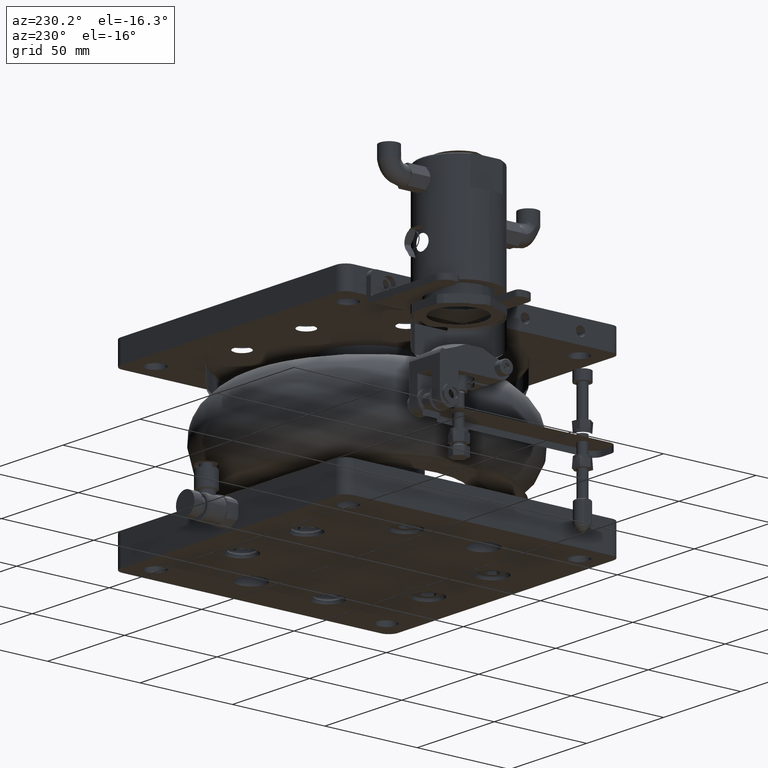
[diagram: clean part render]
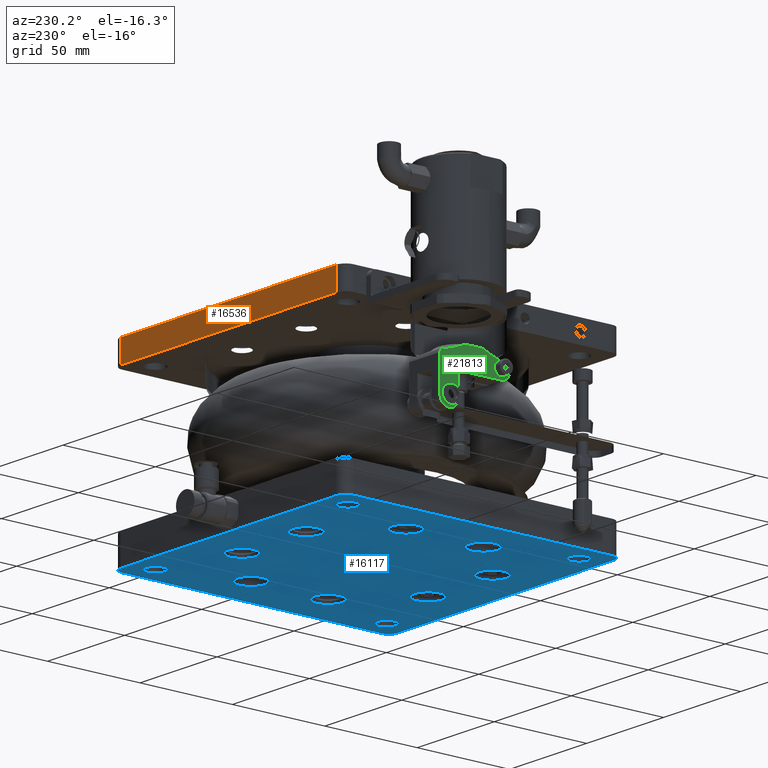
[diagram: same view with three faces highlighted in distinct colors, each labeled with its STEP entity id]
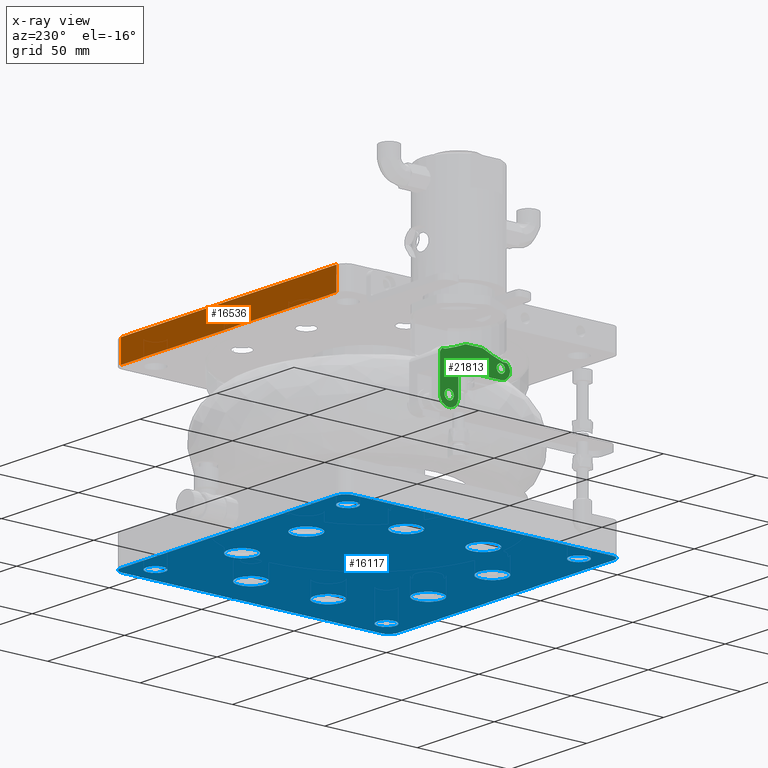
[diagram: x-ray of the same camera — body ghosted, the three highlighted faces saturated]
A machine part, auxiliary view with three faces highlighted in distinct colors.
The next image is the same camera in x-ray (body ghosted, the three faces saturated) — at least one of them is partly hidden behind the body in this view.
Their STEP definitions:

[orange] entity #16536 — the highlighted planar face has unit normal (0, -1, 0).
#113 = VERTEX_POINT ( 'NONE', #23197 ) ;
#1190 = VERTEX_POINT ( 'NONE', #12339 ) ;
#1327 = ORIENTED_EDGE ( 'NONE', *, *, #11111, .F. ) ;
#1502 = LINE ( 'NONE', #21705, #16216 ) ;
#3476 = DIRECTION ( 'NONE',  ( 1.000000000000000000, -0.000000000000000000, 0.000000000000000000 ) ) ;
#3559 = EDGE_CURVE ( 'NONE', #113, #1190, #23733, .T. ) ;
#3677 = ORIENTED_EDGE ( 'NONE', *, *, #3559, .F. ) ;
#4031 = CARTESIAN_POINT ( 'NONE',  ( 198.3816013487657131, 45.06834811713662958, 219.9977288244028273 ) ) ;
#4084 = EDGE_LOOP ( 'NONE', ( #1327, #16520, #3677, #13024 ) ) ;
#4167 = DIRECTION ( 'NONE',  ( 0.000000000000000000, 0.000000000000000000, -1.000000000000000000 ) ) ;
#5846 = LINE ( 'NONE', #7964, #9302 ) ;
#7062 = DIRECTION ( 'NONE',  ( 0.000000000000000000, -1.000000000000000000, 0.000000000000000000 ) ) ;
#7848 = EDGE_CURVE ( 'NONE', #1190, #16833, #1502, .T. ) ;
#7964 = CARTESIAN_POINT ( 'NONE',  ( 198.3816013487657415, 45.06834811713662958, 219.9977288244028273 ) ) ;
#9302 = VECTOR ( 'NONE', #16176, 1000.000000000000000 ) ;
#10013 = CARTESIAN_POINT ( 'NONE',  ( 58.38160134876569884, 45.06834811713662248, 219.9977288244028273 ) ) ;
#10686 = LINE ( 'NONE', #18602, #21137 ) ;
#10936 = AXIS2_PLACEMENT_3D ( 'NONE', #17510, #7062, #19104 ) ;
#11111 = EDGE_CURVE ( 'NONE', #16833, #24352, #5846, .T. ) ;
#12339 = CARTESIAN_POINT ( 'NONE',  ( 58.38160134876569884, 45.06834811713662958, 207.9977288244028557 ) ) ;
#13024 = ORIENTED_EDGE ( 'NONE', *, *, #25129, .F. ) ;
#16176 = DIRECTION ( 'NONE',  ( -0.000000000000000000, -0.000000000000000000, 1.000000000000000000 ) ) ;
#16216 = VECTOR ( 'NONE', #3476, 1000.000000000000000 ) ;
#16520 = ORIENTED_EDGE ( 'NONE', *, *, #7848, .F. ) ;
#16536 = ADVANCED_FACE ( 'NONE', ( #25027 ), #25423, .F. ) ;
#16833 = VERTEX_POINT ( 'NONE', #22852 ) ;
#17510 = CARTESIAN_POINT ( 'NONE',  ( 53.38160134876569884, 45.06834811713662958, 219.9977288244028273 ) ) ;
#18602 = CARTESIAN_POINT ( 'NONE',  ( 53.38160134876569884, 45.06834811713662958, 219.9977288244028273 ) ) ;
#19104 = DIRECTION ( 'NONE',  ( 0.000000000000000000, -0.000000000000000000, -1.000000000000000000 ) ) ;
#20098 = VECTOR ( 'NONE', #4167, 1000.000000000000000 ) ;
#21137 = VECTOR ( 'NONE', #26120, 1000.000000000000000 ) ;
#21705 = CARTESIAN_POINT ( 'NONE',  ( 128.3816013487656846, 45.06834811713662958, 207.9977288244028557 ) ) ;
#22852 = CARTESIAN_POINT ( 'NONE',  ( 198.3816013487657415, 45.06834811713662958, 207.9977288244028557 ) ) ;
#23197 = CARTESIAN_POINT ( 'NONE',  ( 58.38160134876569884, 45.06834811713662958, 219.9977288244028273 ) ) ;
#23733 = LINE ( 'NONE', #10013, #20098 ) ;
#24352 = VERTEX_POINT ( 'NONE', #4031 ) ;
#25027 = FACE_OUTER_BOUND ( 'NONE', #4084, .T. ) ;
#25129 = EDGE_CURVE ( 'NONE', #24352, #113, #10686, .T. ) ;
#25423 = PLANE ( 'NONE',  #10936 ) ;
#26120 = DIRECTION ( 'NONE',  ( -1.000000000000000000, -0.000000000000000000, -0.000000000000000000 ) ) ;

[blue] entity #16117 — the highlighted planar face has unit normal (0, 0, 1).
#60 = AXIS2_PLACEMENT_3D ( 'NONE', #12199, #10480, #20246 ) ;
#174 = EDGE_LOOP ( 'NONE', ( #19569 ) ) ;
#241 = ORIENTED_EDGE ( 'NONE', *, *, #22637, .F. ) ;
#264 = CIRCLE ( 'NONE', #7855, 5.000000000000004441 ) ;
#266 = CARTESIAN_POINT ( 'NONE',  ( 58.38160134876618912, -99.93165188286329226, 119.9977288244024436 ) ) ;
#340 = VERTEX_POINT ( 'NONE', #17880 ) ;
#571 = DIRECTION ( 'NONE',  ( 8.078157638296726621E-17, 3.488754422670472973E-16, 1.000000000000000000 ) ) ;
#700 = DIRECTION ( 'NONE',  ( 0.000000000000000000, -1.000000000000000000, 0.000000000000000000 ) ) ;
#789 = CARTESIAN_POINT ( 'NONE',  ( 178.7330358706313405, -1.575404818965931319, 119.9977288244024010 ) ) ;
#1031 = ORIENTED_EDGE ( 'NONE', *, *, #2359, .F. ) ;
#1254 = DIRECTION ( 'NONE',  ( 0.000000000000000000, 1.000000000000000000, 0.000000000000000000 ) ) ;
#1418 = EDGE_CURVE ( 'NONE', #5361, #21215, #1973, .T. ) ;
#1633 = EDGE_CURVE ( 'NONE', #17044, #17044, #12917, .T. ) ;
#1715 = ORIENTED_EDGE ( 'NONE', *, *, #1418, .T. ) ;
#1740 = DIRECTION ( 'NONE',  ( 8.078157638296726621E-17, 3.488754422670472973E-16, 1.000000000000000000 ) ) ;
#1871 = DIRECTION ( 'NONE',  ( 0.000000000000000000, -1.000000000000000000, 3.488754422670472973E-16 ) ) ;
#1973 = LINE ( 'NONE', #16252, #11646 ) ;
#2224 = EDGE_CURVE ( 'NONE', #10849, #10849, #26000, .T. ) ;
#2359 = EDGE_CURVE ( 'NONE', #5992, #2769, #264, .T. ) ;
#2485 = DIRECTION ( 'NONE',  ( 0.000000000000000000, 1.000000000000000000, 0.000000000000000000 ) ) ;
#2703 = DIRECTION ( 'NONE',  ( -8.078157638296726621E-17, -3.488754422670472973E-16, -1.000000000000000000 ) ) ;
#2769 = VERTEX_POINT ( 'NONE', #21474 ) ;
#2833 = ORIENTED_EDGE ( 'NONE', *, *, #10302, .F. ) ;
#3016 = ORIENTED_EDGE ( 'NONE', *, *, #2224, .F. ) ;
#3031 = VERTEX_POINT ( 'NONE', #13706 ) ;
#3170 = AXIS2_PLACEMENT_3D ( 'NONE', #7076, #19244, #23455 ) ;
#3274 = EDGE_LOOP ( 'NONE', ( #3016 ) ) ;
#3350 = CARTESIAN_POINT ( 'NONE',  ( 107.5253542848687403, -72.78308640472840807, 119.9977288244024294 ) ) ;
#3399 = CARTESIAN_POINT ( 'NONE',  ( 203.3816013487661678, 40.06834811713667932, 119.9977288244023725 ) ) ;
#3408 = DIRECTION ( 'NONE',  ( 0.000000000000000000, 1.000000000000000000, 0.000000000000000000 ) ) ;
#3542 = CARTESIAN_POINT ( 'NONE',  ( 78.03016682690108041, -9.075404818965882470, 119.9977288244024010 ) ) ;
#3874 = EDGE_CURVE ( 'NONE', #15068, #15068, #17178, .T. ) ;
#3881 = DIRECTION ( 'NONE',  ( 0.000000000000000000, 1.000000000000000000, 0.000000000000000000 ) ) ;
#4273 = AXIS2_PLACEMENT_3D ( 'NONE', #16517, #6599, #2485 ) ;
#4615 = EDGE_LOOP ( 'NONE', ( #24083 ) ) ;
#4748 = DIRECTION ( 'NONE',  ( 8.078157638296726621E-17, 3.488754422670472973E-16, 1.000000000000000000 ) ) ;
#4794 = ORIENTED_EDGE ( 'NONE', *, *, #13301, .F. ) ;
#5002 = AXIS2_PLACEMENT_3D ( 'NONE', #16717, #14868, #24754 ) ;
#5003 = CARTESIAN_POINT ( 'NONE',  ( 78.03016682690108041, -1.575404818965874254, 119.9977288244024010 ) ) ;
#5036 = AXIS2_PLACEMENT_3D ( 'NONE', #10060, #14416, #12432 ) ;
#5038 = CIRCLE ( 'NONE', #18155, 7.499999999999992895 ) ;
#5277 = VERTEX_POINT ( 'NONE', #24947 ) ;
#5337 = DIRECTION ( 'NONE',  ( -8.078157638296726621E-17, -3.488754422670472973E-16, -1.000000000000000000 ) ) ;
#5361 = VERTEX_POINT ( 'NONE', #21514 ) ;
#5524 = VECTOR ( 'NONE', #13694, 1000.000000000000000 ) ;
#5613 = CARTESIAN_POINT ( 'NONE',  ( 203.3816013487661678, 45.06834811713670064, 119.9977288244023725 ) ) ;
#5849 = EDGE_LOOP ( 'NONE', ( #6259 ) ) ;
#5954 = CIRCLE ( 'NONE', #60, 4.999999999999990230 ) ;
#5992 = VERTEX_POINT ( 'NONE', #14686 ) ;
#6091 = FACE_BOUND ( 'NONE', #4615, .T. ) ;
#6259 = ORIENTED_EDGE ( 'NONE', *, *, #20298, .F. ) ;
#6343 = DIRECTION ( 'NONE',  ( -1.000000000000000000, -5.551115123125782086E-17, 1.936647743655801879E-32 ) ) ;
#6383 = CIRCLE ( 'NONE', #9772, 7.499999999999992895 ) ;
#6528 = EDGE_LOOP ( 'NONE', ( #13875 ) ) ;
#6599 = DIRECTION ( 'NONE',  ( -8.078157638296726621E-17, -3.488754422670472973E-16, -1.000000000000000000 ) ) ;
#6816 = CARTESIAN_POINT ( 'NONE',  ( 149.2378484126635101, -72.78308640472842228, 119.9977288244024294 ) ) ;
#7076 = CARTESIAN_POINT ( 'NONE',  ( 149.2378484126635669, 20.41978263900181290, 119.9977288244023867 ) ) ;
#7329 = ORIENTED_EDGE ( 'NONE', *, *, #22154, .T. ) ;
#7357 = EDGE_CURVE ( 'NONE', #5992, #11416, #14283, .T. ) ;
#7643 = DIRECTION ( 'NONE',  ( -8.078157638296726621E-17, -3.488754422670472973E-16, -1.000000000000000000 ) ) ;
#7688 = FACE_BOUND ( 'NONE', #17988, .T. ) ;
#7810 = FACE_BOUND ( 'NONE', #174, .T. ) ;
#7855 = AXIS2_PLACEMENT_3D ( 'NONE', #14245, #20052, #18336 ) ;
#7981 = ORIENTED_EDGE ( 'NONE', *, *, #7357, .T. ) ;
#7990 = AXIS2_PLACEMENT_3D ( 'NONE', #3542, #7643, #3408 ) ;
#8210 = FACE_BOUND ( 'NONE', #14233, .T. ) ;
#8215 = CARTESIAN_POINT ( 'NONE',  ( 53.38160134876618201, 45.06834811713670064, 119.9977288244024436 ) ) ;
#8372 = CARTESIAN_POINT ( 'NONE',  ( 107.5253542848687971, 20.41978263900183421, 119.9977288244023867 ) ) ;
#8405 = CARTESIAN_POINT ( 'NONE',  ( 178.7330358706312836, -43.28789894676071981, 119.9977288244024152 ) ) ;
#8592 = DIRECTION ( 'NONE',  ( 0.000000000000000000, -1.000000000000000000, 0.000000000000000000 ) ) ;
#8819 = CARTESIAN_POINT ( 'NONE',  ( 53.38160134876618201, -104.9316518828632923, 119.9977288244024294 ) ) ;
#9508 = EDGE_CURVE ( 'NONE', #5361, #5277, #18541, .T. ) ;
#9772 = AXIS2_PLACEMENT_3D ( 'NONE', #23433, #2703, #18833 ) ;
#9846 = DIRECTION ( 'NONE',  ( 8.078157638296726621E-17, 3.488754422670472973E-16, 1.000000000000000000 ) ) ;
#9994 = EDGE_CURVE ( 'NONE', #3031, #3031, #26131, .T. ) ;
#10060 = CARTESIAN_POINT ( 'NONE',  ( 190.8816013487661678, 32.56834811713671485, 119.9977288244023867 ) ) ;
#10123 = LINE ( 'NONE', #5613, #5524 ) ;
#10197 = VECTOR ( 'NONE', #22089, 1000.000000000000000 ) ;
#10302 = EDGE_CURVE ( 'NONE', #21751, #21751, #19395, .T. ) ;
#10480 = DIRECTION ( 'NONE',  ( 8.078157638296726621E-17, 3.488754422670472973E-16, 1.000000000000000000 ) ) ;
#10677 = AXIS2_PLACEMENT_3D ( 'NONE', #12084, #9846, #3881 ) ;
#10777 = CARTESIAN_POINT ( 'NONE',  ( 58.38160134876618912, 40.06834811713668643, 119.9977288244023867 ) ) ;
#10849 = VERTEX_POINT ( 'NONE', #789 ) ;
#10973 = AXIS2_PLACEMENT_3D ( 'NONE', #18809, #571, #700 ) ;
#11088 = CIRCLE ( 'NONE', #10677, 5.000000000000004441 ) ;
#11181 = CARTESIAN_POINT ( 'NONE',  ( 190.8816013487661678, -87.43165188286329226, 119.9977288244024294 ) ) ;
#11278 = ORIENTED_EDGE ( 'NONE', *, *, #9994, .T. ) ;
#11291 = AXIS2_PLACEMENT_3D ( 'NONE', #23322, #5337, #1254 ) ;
#11369 = DIRECTION ( 'NONE',  ( -8.078157638296726621E-17, -3.488754422670472973E-16, -1.000000000000000000 ) ) ;
#11416 = VERTEX_POINT ( 'NONE', #16202 ) ;
#11519 = ORIENTED_EDGE ( 'NONE', *, *, #9508, .F. ) ;
#11646 = VECTOR ( 'NONE', #14009, 1000.000000000000000 ) ;
#11789 = CIRCLE ( 'NONE', #17695, 5.000000000000004441 ) ;
#12082 = EDGE_LOOP ( 'NONE', ( #4794 ) ) ;
#12084 = CARTESIAN_POINT ( 'NONE',  ( 65.88160134876616780, -92.43165188286330647, 119.9977288244024294 ) ) ;
#12183 = FACE_OUTER_BOUND ( 'NONE', #12806, .T. ) ;
#12199 = CARTESIAN_POINT ( 'NONE',  ( 65.88160134876616780, 32.56834811713671485, 119.9977288244023867 ) ) ;
#12262 = CARTESIAN_POINT ( 'NONE',  ( 178.7330358706313405, -9.075404818965939313, 119.9977288244024010 ) ) ;
#12432 = DIRECTION ( 'NONE',  ( 0.000000000000000000, 1.000000000000000000, 0.000000000000000000 ) ) ;
#12806 = EDGE_LOOP ( 'NONE', ( #15853, #18428, #11519, #1715, #14697, #22788, #1031, #7981 ) ) ;
#12917 = CIRCLE ( 'NONE', #3170, 7.500000000000007105 ) ;
#13259 = EDGE_LOOP ( 'NONE', ( #241 ) ) ;
#13301 = EDGE_CURVE ( 'NONE', #16215, #16215, #16532, .T. ) ;
#13467 = VERTEX_POINT ( 'NONE', #3399 ) ;
#13541 = CIRCLE ( 'NONE', #23631, 7.500000000000007105 ) ;
#13694 = DIRECTION ( 'NONE',  ( 5.551115123125779621E-17, -1.000000000000000000, -4.484278303294300192E-33 ) ) ;
#13706 = CARTESIAN_POINT ( 'NONE',  ( 190.8816013487661678, 37.56834811713672195, 119.9977288244023867 ) ) ;
#13828 = EDGE_CURVE ( 'NONE', #340, #5277, #13908, .T. ) ;
#13875 = ORIENTED_EDGE ( 'NONE', *, *, #17206, .T. ) ;
#13901 = PLANE ( 'NONE',  #22474 ) ;
#13908 = LINE ( 'NONE', #8215, #10197 ) ;
#13927 = CIRCLE ( 'NONE', #10973, 5.000000000000004441 ) ;
#14009 = DIRECTION ( 'NONE',  ( 1.000000000000000000, 5.551115123125782086E-17, -1.936647743655801879E-32 ) ) ;
#14230 = VERTEX_POINT ( 'NONE', #18322 ) ;
#14233 = EDGE_LOOP ( 'NONE', ( #11278 ) ) ;
#14245 = CARTESIAN_POINT ( 'NONE',  ( 198.3816013487661678, -99.93165188286329226, 119.9977288244024294 ) ) ;
#14283 = LINE ( 'NONE', #8819, #18791 ) ;
#14416 = DIRECTION ( 'NONE',  ( 8.078157638296726621E-17, 3.488754422670472973E-16, 1.000000000000000000 ) ) ;
#14464 = DIRECTION ( 'NONE',  ( 0.000000000000000000, 1.000000000000000000, 0.000000000000000000 ) ) ;
#14686 = CARTESIAN_POINT ( 'NONE',  ( 198.3816013487661678, -104.9316518828632923, 119.9977288244024294 ) ) ;
#14697 = ORIENTED_EDGE ( 'NONE', *, *, #18605, .F. ) ;
#14868 = DIRECTION ( 'NONE',  ( 8.078157638296726621E-17, 3.488754422670472973E-16, 1.000000000000000000 ) ) ;
#14908 = EDGE_CURVE ( 'NONE', #14230, #14230, #11088, .T. ) ;
#15010 = VERTEX_POINT ( 'NONE', #11181 ) ;
#15068 = VERTEX_POINT ( 'NONE', #21007 ) ;
#15269 = VERTEX_POINT ( 'NONE', #25289 ) ;
#15758 = FACE_BOUND ( 'NONE', #13259, .T. ) ;
#15853 = ORIENTED_EDGE ( 'NONE', *, *, #17597, .F. ) ;
#15915 = VERTEX_POINT ( 'NONE', #3350 ) ;
#15928 = CARTESIAN_POINT ( 'NONE',  ( 198.3816013487661678, 45.06834811713670774, 119.9977288244023725 ) ) ;
#16017 = FACE_BOUND ( 'NONE', #16705, .T. ) ;
#16117 = ADVANCED_FACE ( 'NONE', ( #12183, #25777, #15758, #19846, #16017, #18266, #7810, #22212, #22084, #6091, #7688, #8210, #19979 ), #13901, .F. ) ;
#16202 = CARTESIAN_POINT ( 'NONE',  ( 58.38160134876618912, -104.9316518828632923, 119.9977288244024294 ) ) ;
#16215 = VERTEX_POINT ( 'NONE', #8405 ) ;
#16252 = CARTESIAN_POINT ( 'NONE',  ( 53.38160134876618201, 45.06834811713670064, 119.9977288244023867 ) ) ;
#16282 = CARTESIAN_POINT ( 'NONE',  ( 128.3816013487661678, -29.93165188286329581, 119.9977288244024010 ) ) ;
#16307 = AXIS2_PLACEMENT_3D ( 'NONE', #12262, #17945, #19925 ) ;
#16439 = DIRECTION ( 'NONE',  ( -8.078157638296726621E-17, -3.488754422670472973E-16, -1.000000000000000000 ) ) ;
#16517 = CARTESIAN_POINT ( 'NONE',  ( 178.7330358706312836, -50.78789894676071981, 119.9977288244024152 ) ) ;
#16532 = CIRCLE ( 'NONE', #4273, 7.500000000000007105 ) ;
#16705 = EDGE_LOOP ( 'NONE', ( #25806 ) ) ;
#16717 = CARTESIAN_POINT ( 'NONE',  ( 190.8816013487661678, -92.43165188286330647, 119.9977288244024294 ) ) ;
#16731 = VERTEX_POINT ( 'NONE', #6816 ) ;
#17044 = VERTEX_POINT ( 'NONE', #25087 ) ;
#17178 = CIRCLE ( 'NONE', #11291, 7.500000000000007105 ) ;
#17206 = EDGE_CURVE ( 'NONE', #15010, #15010, #19380, .T. ) ;
#17597 = EDGE_CURVE ( 'NONE', #340, #11416, #11789, .T. ) ;
#17695 = AXIS2_PLACEMENT_3D ( 'NONE', #266, #4748, #8592 ) ;
#17880 = CARTESIAN_POINT ( 'NONE',  ( 53.38160134876618912, -99.93165188286329226, 119.9977288244024436 ) ) ;
#17945 = DIRECTION ( 'NONE',  ( -8.078157638296726621E-17, -3.488754422670472973E-16, -1.000000000000000000 ) ) ;
#17988 = EDGE_LOOP ( 'NONE', ( #7329 ) ) ;
#18027 = EDGE_LOOP ( 'NONE', ( #24283 ) ) ;
#18155 = AXIS2_PLACEMENT_3D ( 'NONE', #8372, #16439, #14464 ) ;
#18266 = FACE_BOUND ( 'NONE', #20876, .T. ) ;
#18322 = CARTESIAN_POINT ( 'NONE',  ( 65.88160134876616780, -87.43165188286329226, 119.9977288244024294 ) ) ;
#18336 = DIRECTION ( 'NONE',  ( 0.000000000000000000, -1.000000000000000000, 0.000000000000000000 ) ) ;
#18428 = ORIENTED_EDGE ( 'NONE', *, *, #13828, .T. ) ;
#18541 = CIRCLE ( 'NONE', #21480, 4.999999999999997335 ) ;
#18605 = EDGE_CURVE ( 'NONE', #13467, #21215, #13927, .T. ) ;
#18652 = EDGE_CURVE ( 'NONE', #15269, #15269, #5038, .T. ) ;
#18791 = VECTOR ( 'NONE', #6343, 1000.000000000000000 ) ;
#18809 = CARTESIAN_POINT ( 'NONE',  ( 198.3816013487661678, 40.06834811713668643, 119.9977288244023725 ) ) ;
#18827 = DIRECTION ( 'NONE',  ( 8.078157638296726621E-17, 3.488754422670472973E-16, 1.000000000000000000 ) ) ;
#18833 = DIRECTION ( 'NONE',  ( 0.000000000000000000, 1.000000000000000000, 0.000000000000000000 ) ) ;
#19244 = DIRECTION ( 'NONE',  ( -8.078157638296726621E-17, -3.488754422670472973E-16, -1.000000000000000000 ) ) ;
#19380 = CIRCLE ( 'NONE', #5002, 5.000000000000004441 ) ;
#19395 = CIRCLE ( 'NONE', #7990, 7.500000000000007105 ) ;
#19569 = ORIENTED_EDGE ( 'NONE', *, *, #18652, .F. ) ;
#19846 = FACE_BOUND ( 'NONE', #3274, .T. ) ;
#19925 = DIRECTION ( 'NONE',  ( 0.000000000000000000, 1.000000000000000000, 0.000000000000000000 ) ) ;
#19979 = FACE_BOUND ( 'NONE', #6528, .T. ) ;
#20052 = DIRECTION ( 'NONE',  ( 8.078157638296726621E-17, 3.488754422670472973E-16, 1.000000000000000000 ) ) ;
#20246 = DIRECTION ( 'NONE',  ( 0.000000000000000000, 1.000000000000000000, 0.000000000000000000 ) ) ;
#20298 = EDGE_CURVE ( 'NONE', #16731, #16731, #13541, .T. ) ;
#20876 = EDGE_LOOP ( 'NONE', ( #2833 ) ) ;
#21007 = CARTESIAN_POINT ( 'NONE',  ( 78.03016682690105199, -43.28789894676066297, 119.9977288244024152 ) ) ;
#21215 = VERTEX_POINT ( 'NONE', #15928 ) ;
#21390 = DIRECTION ( 'NONE',  ( 0.000000000000000000, 1.000000000000000000, 0.000000000000000000 ) ) ;
#21421 = EDGE_CURVE ( 'NONE', #13467, #2769, #10123, .T. ) ;
#21474 = CARTESIAN_POINT ( 'NONE',  ( 203.3816013487661678, -99.93165188286329226, 119.9977288244024010 ) ) ;
#21480 = AXIS2_PLACEMENT_3D ( 'NONE', #10777, #18827, #24370 ) ;
#21514 = CARTESIAN_POINT ( 'NONE',  ( 58.38160134876618912, 45.06834811713669353, 119.9977288244023867 ) ) ;
#21751 = VERTEX_POINT ( 'NONE', #5003 ) ;
#21846 = CARTESIAN_POINT ( 'NONE',  ( 65.88160134876616780, 37.56834811713670774, 119.9977288244023867 ) ) ;
#22084 = FACE_BOUND ( 'NONE', #12082, .T. ) ;
#22089 = DIRECTION ( 'NONE',  ( -5.551115123125779621E-17, 1.000000000000000000, 4.484278303294300192E-33 ) ) ;
#22154 = EDGE_CURVE ( 'NONE', #25674, #25674, #5954, .T. ) ;
#22212 = FACE_BOUND ( 'NONE', #18027, .T. ) ;
#22474 = AXIS2_PLACEMENT_3D ( 'NONE', #16282, #1740, #1871 ) ;
#22637 = EDGE_CURVE ( 'NONE', #15915, #15915, #6383, .T. ) ;
#22788 = ORIENTED_EDGE ( 'NONE', *, *, #21421, .T. ) ;
#23322 = CARTESIAN_POINT ( 'NONE',  ( 78.03016682690105199, -50.78789894676067007, 119.9977288244024152 ) ) ;
#23371 = CARTESIAN_POINT ( 'NONE',  ( 149.2378484126635101, -80.28308640472843649, 119.9977288244024294 ) ) ;
#23433 = CARTESIAN_POINT ( 'NONE',  ( 107.5253542848687403, -80.28308640472840807, 119.9977288244024294 ) ) ;
#23455 = DIRECTION ( 'NONE',  ( 0.000000000000000000, 1.000000000000000000, 0.000000000000000000 ) ) ;
#23631 = AXIS2_PLACEMENT_3D ( 'NONE', #23371, #11369, #21390 ) ;
#24083 = ORIENTED_EDGE ( 'NONE', *, *, #14908, .T. ) ;
#24283 = ORIENTED_EDGE ( 'NONE', *, *, #1633, .F. ) ;
#24370 = DIRECTION ( 'NONE',  ( 0.000000000000000000, -1.000000000000000000, 0.000000000000000000 ) ) ;
#24754 = DIRECTION ( 'NONE',  ( 0.000000000000000000, 1.000000000000000000, 0.000000000000000000 ) ) ;
#24947 = CARTESIAN_POINT ( 'NONE',  ( 53.38160134876618201, 40.06834811713668643, 119.9977288244024152 ) ) ;
#25087 = CARTESIAN_POINT ( 'NONE',  ( 149.2378484126635669, 27.91978263900182000, 119.9977288244023867 ) ) ;
#25289 = CARTESIAN_POINT ( 'NONE',  ( 107.5253542848687971, 27.91978263900182711, 119.9977288244023867 ) ) ;
#25674 = VERTEX_POINT ( 'NONE', #21846 ) ;
#25777 = FACE_BOUND ( 'NONE', #5849, .T. ) ;
#25806 = ORIENTED_EDGE ( 'NONE', *, *, #3874, .F. ) ;
#26000 = CIRCLE ( 'NONE', #16307, 7.500000000000007105 ) ;
#26131 = CIRCLE ( 'NONE', #5036, 5.000000000000004441 ) ;

[green] entity #21813 — the highlighted planar face has unit normal (1, 0, 0).
#32 = EDGE_CURVE ( 'NONE', #1100, #5857, #2314, .T. ) ;
#52 = ORIENTED_EDGE ( 'NONE', *, *, #3566, .T. ) ;
#57 = CARTESIAN_POINT ( 'NONE',  ( 13.38160134876583918, 20.37549631030810104, 160.1980961059932440 ) ) ;
#209 = ORIENTED_EDGE ( 'NONE', *, *, #5403, .F. ) ;
#408 = CARTESIAN_POINT ( 'NONE',  ( 13.38160134876584273, 23.57989182585914989, 156.4738436644708486 ) ) ;
#455 = CARTESIAN_POINT ( 'NONE',  ( 13.38160134876580720, 16.56834811713656919, 169.4977288244027136 ) ) ;
#541 = CIRCLE ( 'NONE', #17847, 5.000000000000004441 ) ;
#543 = CARTESIAN_POINT ( 'NONE',  ( 13.38160134876584983, 21.17545595609810150, 155.5196110315954172 ) ) ;
#580 = CARTESIAN_POINT ( 'NONE',  ( 13.38160134876579299, -8.548976455671834174, 175.2591979342627440 ) ) ;
#606 = CARTESIAN_POINT ( 'NONE',  ( 13.38160134876580720, -11.43165188286343614, 169.4977288244027136 ) ) ;
#672 = CARTESIAN_POINT ( 'NONE',  ( 13.38160134876584628, 23.92093097581258476, 157.1516474633576195 ) ) ;
#709 = CARTESIAN_POINT ( 'NONE',  ( 13.38160134876579477, -8.409518947267818234, 175.6144890983447056 ) ) ;
#797 = CARTESIAN_POINT ( 'NONE',  ( 13.38160134876584983, 23.90721775336383459, 157.1145054098524270 ) ) ;
#1097 = CARTESIAN_POINT ( 'NONE',  ( 13.38160134876578944, -6.994187001997313580, 176.6950025233648205 ) ) ;
#1100 = VERTEX_POINT ( 'NONE', #15121 ) ;
#1222 = CARTESIAN_POINT ( 'NONE',  ( 13.38160134876578944, -5.636773590340105500, 176.6027196541757860 ) ) ;
#1351 = CARTESIAN_POINT ( 'NONE',  ( 13.38160134876578589, -7.496034299136748125, 177.4977288244027420 ) ) ;
#1421 = CARTESIAN_POINT ( 'NONE',  ( 13.38160134876580365, -7.803168122902953030, 172.6873695744798738 ) ) ;
#1524 = CARTESIAN_POINT ( 'NONE',  ( 13.38160134876584273, 19.09028927305456236, 158.3907699767799784 ) ) ;
#1547 = CARTESIAN_POINT ( 'NONE',  ( 13.38160134876579122, -4.314327310055027453, 173.7362597145389600 ) ) ;
#1555 = CARTESIAN_POINT ( 'NONE',  ( 13.38160134876577878, -2.841510006786728049, 178.9481321665420808 ) ) ;
#1596 = CARTESIAN_POINT ( 'NONE',  ( 13.38160134876584628, 16.56834811713656563, 157.4977288244027136 ) ) ;
#1647 = CARTESIAN_POINT ( 'NONE',  ( 13.38160134876584451, 19.15428431114869667, 158.6567700783562884 ) ) ;
#1672 = CARTESIAN_POINT ( 'NONE',  ( 13.38160134876579832, -6.145885263283470401, 172.2477961868043224 ) ) ;
#1679 = CARTESIAN_POINT ( 'NONE',  ( 13.38160134876584806, 21.56834811713656563, 157.4977288244026852 ) ) ;
#1782 = CARTESIAN_POINT ( 'NONE',  ( 13.38160134876583740, 19.92246954205384313, 159.8874366738967865 ) ) ;
#1814 = CARTESIAN_POINT ( 'NONE',  ( 13.38160134876577523, -3.754158420937409257, 178.6079293123809464 ) ) ;
#1895 = EDGE_CURVE ( 'NONE', #12032, #18326, #5306, .T. ) ;
#2196 = CARTESIAN_POINT ( 'NONE',  ( 13.38160134876575924, 13.56915133555782660, 181.1728431452843040 ) ) ;
#2314 = CIRCLE ( 'NONE', #12458, 5.000000000000004441 ) ;
#2380 = CARTESIAN_POINT ( 'NONE',  ( 13.38160134876585161, 20.66815143234700258, 155.6653291702331785 ) ) ;
#2511 = CARTESIAN_POINT ( 'NONE',  ( 13.38160134876584273, 19.06834811713656563, 157.6796445879941189 ) ) ;
#2556 = CARTESIAN_POINT ( 'NONE',  ( 13.38160134876579122, -8.661904842537243354, 174.8514502381941895 ) ) ;
#2560 = CARTESIAN_POINT ( 'NONE',  ( 13.38160134876583740, 23.87668432209984815, 158.9579697167922347 ) ) ;
#2652 = CARTESIAN_POINT ( 'NONE',  ( 13.38160134876584273, 24.06834811713657984, 157.9977288244026852 ) ) ;
#2686 = CARTESIAN_POINT ( 'NONE',  ( 13.38160134876578589, -7.912957644423375569, 176.1984560908787216 ) ) ;
#2761 = VERTEX_POINT ( 'NONE', #25304 ) ;
#2776 = CARTESIAN_POINT ( 'NONE',  ( 13.38160134876579654, -5.358065511486460153, 172.5174111309373473 ) ) ;
#2973 = VECTOR ( 'NONE', #19034, 1000.000000000000000 ) ;
#3156 = VECTOR ( 'NONE', #10015, 1000.000000000000000 ) ;
#3261 = CARTESIAN_POINT ( 'NONE',  ( 13.38160134876579832, -6.574535192653411464, 172.2476951432019234 ) ) ;
#3386 = CARTESIAN_POINT ( 'NONE',  ( 13.38160134876579477, -8.681651882863434366, 174.4977288244027704 ) ) ;
#3402 = DIRECTION ( 'NONE',  ( 1.000000000000000000, -8.326672684689058623E-17, 3.197082671100923027E-15 ) ) ;
#3470 = DIRECTION ( 'NONE',  ( 3.197082671100923027E-15, 0.000000000000000000, -1.000000000000000000 ) ) ;
#3530 = CARTESIAN_POINT ( 'NONE',  ( 13.38160134876576812, 2.567544898715355295, 181.1728431452843324 ) ) ;
#3566 = EDGE_CURVE ( 'NONE', #20892, #22736, #6741, .T. ) ;
#3702 = EDGE_CURVE ( 'NONE', #17120, #22501, #20687, .T. ) ;
#3753 = CARTESIAN_POINT ( 'NONE',  ( 13.38160134876584095, 19.21576525846056427, 158.8438101854452214 ) ) ;
#3781 = LINE ( 'NONE', #15696, #3815 ) ;
#3786 = CARTESIAN_POINT ( 'NONE',  ( 13.38160134876576635, -0.1326329568392332903, 180.0485460469813859 ) ) ;
#3815 = VECTOR ( 'NONE', #14947, 1000.000000000000000 ) ;
#3894 = CARTESIAN_POINT ( 'NONE',  ( 13.38160134876583740, 21.72712672534241563, 160.4977625093843869 ) ) ;
#4044 = CARTESIAN_POINT ( 'NONE',  ( 13.38160134876577523, 19.89085465521065288, 178.6079293123809180 ) ) ;
#4144 = CARTESIAN_POINT ( 'NONE',  ( 13.38160134876584273, 23.85986640886244814, 158.9975199293717196 ) ) ;
#4203 = EDGE_CURVE ( 'NONE', #5857, #22736, #11245, .T. ) ;
#4370 = CARTESIAN_POINT ( 'NONE',  ( 13.38160134876584628, 23.21422669222484814, 156.1080209749190431 ) ) ;
#4491 = EDGE_CURVE ( 'NONE', #18093, #9973, #15921, .T. ) ;
#4500 = CARTESIAN_POINT ( 'NONE',  ( 13.38160134876584451, 19.51759662029746778, 156.5492078051119904 ) ) ;
#4543 = CARTESIAN_POINT ( 'NONE',  ( 13.38160134876584095, 23.76871539871447325, 159.1905806312445293 ) ) ;
#4628 = CARTESIAN_POINT ( 'NONE',  ( 13.38160134876584983, 19.26001191217264008, 157.0374879320151251 ) ) ;
#4761 = CARTESIAN_POINT ( 'NONE',  ( 13.38160134876584451, 19.12685786625121764, 157.3728989966926690 ) ) ;
#4828 = ORIENTED_EDGE ( 'NONE', *, *, #12393, .F. ) ;
#4877 = VECTOR ( 'NONE', #5696, 1000.000000000000000 ) ;
#5115 = EDGE_CURVE ( 'NONE', #16469, #9844, #9885, .T. ) ;
#5134 = ORIENTED_EDGE ( 'NONE', *, *, #1895, .F. ) ;
#5239 = CARTESIAN_POINT ( 'NONE',  ( 13.38160134876579477, -5.478844098679584995, 172.4586890753502644 ) ) ;
#5305 = EDGE_LOOP ( 'NONE', ( #8326, #9773 ) ) ;
#5306 = LINE ( 'NONE', #10079, #4877 ) ;
#5367 = CARTESIAN_POINT ( 'NONE',  ( 13.38160134876580187, -7.226530175393977906, 172.3927379946324550 ) ) ;
#5403 = EDGE_CURVE ( 'NONE', #6846, #22501, #7504, .T. ) ;
#5432 = CARTESIAN_POINT ( 'NONE',  ( 13.38160134876579477, -4.181651882863429925, 174.4977288244027704 ) ) ;
#5495 = CARTESIAN_POINT ( 'NONE',  ( 13.38160134876580365, -7.142795494857497651, 172.3624827091294378 ) ) ;
#5606 = CARTESIAN_POINT ( 'NONE',  ( 13.38160134876582852, 20.11982709784927792, 160.0484803212538907 ) ) ;
#5696 = DIRECTION ( 'NONE',  ( 8.326672684688751707E-17, -1.000000000000000000, 2.662106094814781384E-31 ) ) ;
#5697 = CARTESIAN_POINT ( 'NONE',  ( 13.38160134876579299, -4.369289936605356139, 175.3975477532102332 ) ) ;
#5775 = AXIS2_PLACEMENT_3D ( 'NONE', #1679, #13717, #17942 ) ;
#5857 = VERTEX_POINT ( 'NONE', #23530 ) ;
#5865 = CARTESIAN_POINT ( 'NONE',  ( 13.38160134876584806, 19.06834811713656919, 158.1565925704821893 ) ) ;
#6009 = CARTESIAN_POINT ( 'NONE',  ( 13.38160134876583562, 19.55680440840290402, 159.5216139843133760 ) ) ;
#6400 = B_SPLINE_CURVE_WITH_KNOTS ( 'NONE', 3,
 ( #25593, #3530, #11610, #3786, #19665, #1555, #1814, #8016, #10413, #20696 ),
 .UNSPECIFIED., .F., .F.,
 ( 4, 2, 2, 2, 4 ),
 ( 3.903127820947815962E-18, 0.002921900910199278206, 0.005843801820398552074, 0.008765702730597825509, 0.01168760364079710068 ),
 .UNSPECIFIED. ) ;
#6468 = CARTESIAN_POINT ( 'NONE',  ( 13.38160134876579477, -6.508566796174854119, 173.6240966196251634 ) ) ;
#6496 = CARTESIAN_POINT ( 'NONE',  ( 13.38160134876585161, 22.62701063506553112, 155.7321207680782607 ) ) ;
#6667 = EDGE_CURVE ( 'NONE', #20892, #2761, #14106, .T. ) ;
#6686 = DIRECTION ( 'NONE',  ( -2.334029803803866720E-30, -1.000000000000000000, 7.300498748129456208E-16 ) ) ;
#6741 = B_SPLINE_CURVE_WITH_KNOTS ( 'NONE', 3,
 ( #8005, #2196, #22147, #9878, #17934, #22017, #4044, #8279, #25973, #19777 ),
 .UNSPECIFIED., .F., .F.,
 ( 4, 2, 2, 2, 4 ),
 ( 8.673617379884035472E-18, 0.002921900910199304226, 0.005843801820398599779, 0.008765702730597894898, 0.01168760364079719088 ),
 .UNSPECIFIED. ) ;
#6752 = CARTESIAN_POINT ( 'NONE',  ( 13.38160134876584806, 22.50703717242945601, 155.6805675705147678 ) ) ;
#6789 = CARTESIAN_POINT ( 'NONE',  ( 13.38160134876579477, -8.681651882863434366, 174.4977288244027704 ) ) ;
#6846 = VERTEX_POINT ( 'NONE', #8608 ) ;
#6947 = ORIENTED_EDGE ( 'NONE', *, *, #16173, .F. ) ;
#7118 = B_SPLINE_CURVE_WITH_KNOTS ( 'NONE', 3,
 ( #11728, #23480, #9486, #9357, #25327, #1547, #7237, #25586, #15309, #19778, #17419, #23352, #2776, #5239, #12838, #25460, #7493, #21370, #1672, #3261, #20882, #17546, #5495, #7367, #5367, #10853, #15557, #1421, #19533, #13453, #13710, #9613, #15693, #18901, #25713, #21498, #23605, #3386 ),
 .UNSPECIFIED., .F., .F.,
 ( 4, 1, 1, 1, 2, 2, 2, 1, 1, 1, 2, 2, 2, 1, 1, 1, 2, 2, 2, 1, 1, 1, 2, 2, 4 ),
 ( 0.000000000000000000, 0.06250000000002091383, 0.09375000000003136380, 0.1093750000000365402, 0.1171875000000333622, 0.1250000000000301703, 0.2500000000000639488, 0.3125000000000848210, 0.3437500000000953682, 0.3593750000000980327, 0.3671875000000991984, 0.3750000000001003642, 0.5000000000000497380, 0.5625000000000243139, 0.5937500000000107692, 0.6093750000000037748, 0.6171875000000002220, 0.6249999999999967804, 0.7499999999999343858, 0.8124999999999032996, 0.8437499999998923084, 0.8593749999998866462, 0.8671874999998890887, 0.8749999999998914202, 1.000000000000000000 ),
 .UNSPECIFIED. ) ;
#7170 = CARTESIAN_POINT ( 'NONE',  ( 13.38160134876578589, -7.331470811668353349, 176.5600907706626685 ) ) ;
#7179 = FACE_OUTER_BOUND ( 'NONE', #23100, .T. ) ;
#7237 = CARTESIAN_POINT ( 'NONE',  ( 13.38160134876579832, -4.326669210258900833, 173.7028299134665303 ) ) ;
#7367 = CARTESIAN_POINT ( 'NONE',  ( 13.38160134876580010, -7.193081751245361311, 172.3803887266658421 ) ) ;
#7435 = CARTESIAN_POINT ( 'NONE',  ( 13.38160134876578589, -7.276469852963917795, 176.5831743754449406 ) ) ;
#7493 = CARTESIAN_POINT ( 'NONE',  ( 13.38160134876580010, -5.586833912759564313, 172.4122832733619362 ) ) ;
#7504 = CIRCLE ( 'NONE', #25634, 5.000000000000004441 ) ;
#7560 = CARTESIAN_POINT ( 'NONE',  ( 13.38160134876579122, -4.234310657066606254, 175.0600934885415256 ) ) ;
#7668 = CARTESIAN_POINT ( 'NONE',  ( 13.38160134876584273, 24.06834811713657984, 157.9977288244026852 ) ) ;
#7691 = CARTESIAN_POINT ( 'NONE',  ( 13.38160134876579122, -5.060135642798059941, 176.3080880742811303 ) ) ;
#7837 = EDGE_LOOP ( 'NONE', ( #20034, #8123 ) ) ;
#7851 = CARTESIAN_POINT ( 'NONE',  ( 13.38160134876583385, 22.35852252008428209, 160.3702216456934195 ) ) ;
#7982 = CARTESIAN_POINT ( 'NONE',  ( 13.38160134876583918, 22.46854480192518366, 160.3301284785738687 ) ) ;
#8005 = CARTESIAN_POINT ( 'NONE',  ( 13.38160134876576990, 12.65092381209244365, 181.4977288244027136 ) ) ;
#8016 = CARTESIAN_POINT ( 'NONE',  ( 13.38160134876577878, -5.604556332329364565, 177.9964374148076729 ) ) ;
#8123 = ORIENTED_EDGE ( 'NONE', *, *, #12900, .F. ) ;
#8279 = CARTESIAN_POINT ( 'NONE',  ( 13.38160134876577878, 21.74125256660261485, 177.9964374148076445 ) ) ;
#8326 = ORIENTED_EDGE ( 'NONE', *, *, #5115, .F. ) ;
#8342 = CARTESIAN_POINT ( 'NONE',  ( 13.38160134876584273, 24.06834811713658340, 157.8388650783176104 ) ) ;
#8411 = CARTESIAN_POINT ( 'NONE',  ( 13.38160134876577168, -11.43165188286343614, 181.4977288244027136 ) ) ;
#8419 = CARTESIAN_POINT ( 'NONE',  ( 13.38160134876578056, -9.670049603673593452, 177.4977288244027420 ) ) ;
#8424 = CARTESIAN_POINT ( 'NONE',  ( 13.38160134876579477, 21.78223466298161171, 174.0509676126069110 ) ) ;
#8608 = CARTESIAN_POINT ( 'NONE',  ( 13.38160134876579477, -11.43165188286343259, 174.4977288244027420 ) ) ;
#8644 = CARTESIAN_POINT ( 'NONE',  ( 13.38160134876579122, -8.536634555467966123, 175.2926277353370210 ) ) ;
#8736 = CARTESIAN_POINT ( 'NONE',  ( 13.38160134876585339, 21.40956950896493183, 155.4976951394168623 ) ) ;
#8866 = CARTESIAN_POINT ( 'NONE',  ( 13.38160134876584983, 23.76595644557529496, 156.7568506246540778 ) ) ;
#9161 = CARTESIAN_POINT ( 'NONE',  ( 13.38160134876579122, -5.720508270892185720, 176.6329749396846296 ) ) ;
#9167 = VECTOR ( 'NONE', #9642, 1000.000000000000000 ) ;
#9171 = CARTESIAN_POINT ( 'NONE',  ( 13.38160134876580898, -11.43165188286343614, 169.4977288244027136 ) ) ;
#9292 = CARTESIAN_POINT ( 'NONE',  ( 13.38160134876578766, -5.314891608926214595, 176.4755958888090106 ) ) ;
#9357 = CARTESIAN_POINT ( 'NONE',  ( 13.38160134876579299, -4.258994457474346795, 173.9046034133448586 ) ) ;
#9427 = CARTESIAN_POINT ( 'NONE',  ( 13.38160134876578589, -7.384459667047046594, 176.5367685734555891 ) ) ;
#9486 = CARTESIAN_POINT ( 'NONE',  ( 13.38160134876580010, -4.201398923189621826, 174.1440074105969416 ) ) ;
#9613 = CARTESIAN_POINT ( 'NONE',  ( 13.38160134876579832, -8.470691631923081388, 173.5449210402320830 ) ) ;
#9642 = DIRECTION ( 'NONE',  ( 8.326672684688751707E-17, -1.000000000000000000, 2.662106094814781384E-31 ) ) ;
#9773 = ORIENTED_EDGE ( 'NONE', *, *, #15281, .F. ) ;
#9844 = VERTEX_POINT ( 'NONE', #20766 ) ;
#9858 = CARTESIAN_POINT ( 'NONE',  ( 13.38160134876583207, 20.60810722474942125, 160.3060650293681988 ) ) ;
#9878 = CARTESIAN_POINT ( 'NONE',  ( 13.38160134876576812, 16.26932919111243336, 180.0485460469813859 ) ) ;
#9885 = B_SPLINE_CURVE_WITH_KNOTS ( 'NONE', 3,
 ( #6789, #18693, #2556, #10642, #21050, #580, #8644, #12750, #709, #20793, #2686, #11284, #15762, #9427, #7170, #19337, #7435, #1097, #11546, #25403, #23801, #23417, #9161, #21691, #1222, #15499, #9292, #7691, #23542, #17486, #25262, #25650, #5697, #23290, #17353, #7560, #17219, #5432 ),
 .UNSPECIFIED., .F., .F.,
 ( 4, 1, 1, 1, 2, 2, 2, 1, 1, 1, 2, 2, 2, 1, 1, 1, 2, 2, 2, 1, 1, 1, 2, 2, 4 ),
 ( 0.000000000000000000, 0.06250000000003158585, 0.09375000000004737877, 0.1093750000000493772, 0.1171875000000445893, 0.1250000000000398015, 0.2499999999999699407, 0.3124999999999389377, 0.3437499999999233946, 0.3593749999999182876, 0.3671874999999180655, 0.3749999999999178435, 0.4999999999999503175, 0.5624999999999663602, 0.5937499999999757971, 0.6093749999999822364, 0.6171874999999833467, 0.6249999999999845679, 0.7499999999999777955, 0.8124999999999743538, 0.8437499999999680256, 0.8593749999999698019, 0.8671874999999757971, 0.8749999999999819034, 1.000000000000000000 ),
 .UNSPECIFIED. ) ;
#9973 = VERTEX_POINT ( 'NONE', #22068 ) ;
#9988 = CARTESIAN_POINT ( 'NONE',  ( 13.38160134876584273, 19.22947848090932510, 158.8809522389516360 ) ) ;
#10002 = CARTESIAN_POINT ( 'NONE',  ( 13.38160134876580898, -6.431651882863437031, 169.4977288244027136 ) ) ;
#10015 = DIRECTION ( 'NONE',  ( 8.326672684688751707E-17, -1.000000000000000000, 2.662106094814781384E-31 ) ) ;
#10079 = CARTESIAN_POINT ( 'NONE',  ( 13.38160134876578411, -11.43165188286343614, 177.4977288244027420 ) ) ;
#10251 = CARTESIAN_POINT ( 'NONE',  ( 13.38160134876584095, 24.00983836802193494, 158.6225586521100297 ) ) ;
#10339 = CARTESIAN_POINT ( 'NONE',  ( 13.38160134876584273, 24.04640696121857957, 157.6046876720155865 ) ) ;
#10413 = CARTESIAN_POINT ( 'NONE',  ( 13.38160134876578411, -6.542201222255158655, 177.7248611770654350 ) ) ;
#10569 = DIRECTION ( 'NONE',  ( -3.122502256758250009E-15, -1.734723475976805517E-15, 1.000000000000000000 ) ) ;
#10642 = CARTESIAN_POINT ( 'NONE',  ( 13.38160134876579299, -8.604309308252519273, 175.0908542354498252 ) ) ;
#10731 = CARTESIAN_POINT ( 'NONE',  ( 13.38160134876584451, 23.90074777130623573, 157.0975321396132358 ) ) ;
#10835 = CARTESIAN_POINT ( 'NONE',  ( 13.38160134876584451, 19.06834811713656919, 157.9977288244026852 ) ) ;
#10853 = CARTESIAN_POINT ( 'NONE',  ( 13.38160134876580187, -7.241830780786641775, 172.3985703586999136 ) ) ;
#11164 = FACE_BOUND ( 'NONE', #5305, .T. ) ;
#11245 = LINE ( 'NONE', #19300, #9167 ) ;
#11284 = CARTESIAN_POINT ( 'NONE',  ( 13.38160134876578766, -7.735347127196598116, 176.3433880249484673 ) ) ;
#11546 = CARTESIAN_POINT ( 'NONE',  ( 13.38160134876578411, -6.717418502383797119, 176.7476614619787085 ) ) ;
#11610 = CARTESIAN_POINT ( 'NONE',  ( 13.38160134876576990, 1.666595325700058527, 180.8005216880700061 ) ) ;
#11728 = CARTESIAN_POINT ( 'NONE',  ( 13.38160134876579477, -4.181651882863429925, 174.4977288244027704 ) ) ;
#11831 = CARTESIAN_POINT ( 'NONE',  ( 13.38160134876583918, 19.37073978868328439, 159.2386070241266793 ) ) ;
#12032 = VERTEX_POINT ( 'NONE', #1351 ) ;
#12314 = AXIS2_PLACEMENT_3D ( 'NONE', #9171, #21576, #3470 ) ;
#12324 = CARTESIAN_POINT ( 'NONE',  ( 13.38160134876584806, 23.94081514836326718, 157.2074892377661399 ) ) ;
#12373 = EDGE_CURVE ( 'NONE', #1100, #9973, #19168, .T. ) ;
#12393 = EDGE_CURVE ( 'NONE', #17120, #18093, #3781, .T. ) ;
#12458 = AXIS2_PLACEMENT_3D ( 'NONE', #8424, #12791, #24783 ) ;
#12576 = CARTESIAN_POINT ( 'NONE',  ( 13.38160134876584806, 19.30274006080935223, 156.9390663064765477 ) ) ;
#12615 = CARTESIAN_POINT ( 'NONE',  ( 13.38160134876584273, 24.06834811713658340, 158.3158130608085230 ) ) ;
#12711 = CARTESIAN_POINT ( 'NONE',  ( 13.38160134876584451, 23.98241192312444170, 157.3386875704417491 ) ) ;
#12750 = CARTESIAN_POINT ( 'NONE',  ( 13.38160134876579299, -8.530810348565534440, 175.3079077223277409 ) ) ;
#12791 = DIRECTION ( 'NONE',  ( 1.000000000000000000, -8.326672684689058623E-17, 3.197082671100923027E-15 ) ) ;
#12838 = CARTESIAN_POINT ( 'NONE',  ( 13.38160134876580010, -5.531832954058374163, 172.4353668781431281 ) ) ;
#12900 = EDGE_CURVE ( 'NONE', #13974, #13338, #20425, .T. ) ;
#13338 = VERTEX_POINT ( 'NONE', #10835 ) ;
#13402 = PLANE ( 'NONE',  #12314 ) ;
#13453 = CARTESIAN_POINT ( 'NONE',  ( 13.38160134876579654, -8.277311083424702787, 173.1940335800990169 ) ) ;
#13627 = ORIENTED_EDGE ( 'NONE', *, *, #4491, .F. ) ;
#13688 = CARTESIAN_POINT ( 'NONE',  ( 13.38160134876583562, 21.25079090072489052, 160.4976614544392248 ) ) ;
#13710 = CARTESIAN_POINT ( 'NONE',  ( 13.38160134876579832, -8.411969576341270738, 173.4241424530483471 ) ) ;
#13717 = DIRECTION ( 'NONE',  ( 1.000000000000000000, -8.326672684689058623E-17, 3.197082671100923027E-15 ) ) ;
#13945 = CARTESIAN_POINT ( 'NONE',  ( 13.38160134876583385, 20.56855701217228116, 160.2892471161329411 ) ) ;
#13974 = VERTEX_POINT ( 'NONE', #7668 ) ;
#14080 = CARTESIAN_POINT ( 'NONE',  ( 13.38160134876583207, 23.09223327706656903, 160.0092725331159613 ) ) ;
#14106 = LINE ( 'NONE', #8411, #3156 ) ;
#14212 = CARTESIAN_POINT ( 'NONE',  ( 13.38160134876584451, 19.06834811713656919, 157.9977288244026852 ) ) ;
#14325 = ORIENTED_EDGE ( 'NONE', *, *, #32, .F. ) ;
#14340 = CARTESIAN_POINT ( 'NONE',  ( 13.38160134876583918, 23.61909961397099522, 159.4462498437077045 ) ) ;
#14436 = CARTESIAN_POINT ( 'NONE',  ( 13.38160134876585339, 23.01686913643356291, 155.9469773275698969 ) ) ;
#14534 = DIRECTION ( 'NONE',  ( 1.000000000000000000, -8.326672684689058623E-17, 3.197082671100923027E-15 ) ) ;
#14692 = CARTESIAN_POINT ( 'NONE',  ( 13.38160134876584983, 22.56813922210342582, 155.7062105326772610 ) ) ;
#14822 = CARTESIAN_POINT ( 'NONE',  ( 13.38160134876585161, 20.32746991739019293, 155.8001204959616928 ) ) ;
#14947 = DIRECTION ( 'NONE',  ( 3.197082671100923027E-15, 0.000000000000000000, -1.000000000000000000 ) ) ;
#14949 = CARTESIAN_POINT ( 'NONE',  ( 13.38160134876585161, 21.88590533347986167, 155.4977961943744447 ) ) ;
#15121 = CARTESIAN_POINT ( 'NONE',  ( 13.38160134876579122, 26.56834811713657274, 175.4977288244027704 ) ) ;
#15281 = EDGE_CURVE ( 'NONE', #9844, #16469, #7118, .T. ) ;
#15309 = CARTESIAN_POINT ( 'NONE',  ( 13.38160134876579654, -4.453784818471338447, 173.3809685504478182 ) ) ;
#15499 = CARTESIAN_POINT ( 'NONE',  ( 13.38160134876578766, -5.621472984938153949, 176.5968872901047177 ) ) ;
#15557 = CARTESIAN_POINT ( 'NONE',  ( 13.38160134876580365, -7.548412156833745890, 172.5198617600107980 ) ) ;
#15668 = CARTESIAN_POINT ( 'NONE',  ( 13.38160134876584451, 19.19588108590989251, 158.7879684110349672 ) ) ;
#15693 = CARTESIAN_POINT ( 'NONE',  ( 13.38160134876579654, -8.494013829127467829, 173.5979098956055964 ) ) ;
#15696 = CARTESIAN_POINT ( 'NONE',  ( 13.38160134876580720, 16.56834811713656919, 169.4977288244027136 ) ) ;
#15709 = CARTESIAN_POINT ( 'NONE',  ( 13.38160134876579654, -6.431651882863431702, 174.4977288244027704 ) ) ;
#15762 = CARTESIAN_POINT ( 'NONE',  ( 13.38160134876579122, -7.505238254240009788, 176.4780465178689894 ) ) ;
#15908 = CARTESIAN_POINT ( 'NONE',  ( 13.38160134876577878, 23.63273053341000818, 177.4977288244027420 ) ) ;
#15921 = CIRCLE ( 'NONE', #5775, 5.000000000000004441 ) ;
#16062 = CARTESIAN_POINT ( 'NONE',  ( 13.38160134876583740, 22.80922631689831803, 160.1953371528171601 ) ) ;
#16173 = EDGE_CURVE ( 'NONE', #18326, #6846, #541, .T. ) ;
#16451 = CARTESIAN_POINT ( 'NONE',  ( 13.38160134876584095, 23.83395617346173623, 159.0563913423351039 ) ) ;
#16469 = VERTEX_POINT ( 'NONE', #19923 ) ;
#16797 = CARTESIAN_POINT ( 'NONE',  ( 13.38160134876584806, 19.27682982540945744, 156.9979377194375445 ) ) ;
#17115 = ORIENTED_EDGE ( 'NONE', *, *, #4203, .F. ) ;
#17120 = VERTEX_POINT ( 'NONE', #455 ) ;
#17219 = CARTESIAN_POINT ( 'NONE',  ( 13.38160134876579299, -4.181651882863428149, 174.7840224563700531 ) ) ;
#17353 = CARTESIAN_POINT ( 'NONE',  ( 13.38160134876578944, -4.346210552248359171, 175.3425574479403792 ) ) ;
#17419 = CARTESIAN_POINT ( 'NONE',  ( 13.38160134876579832, -4.950346121303193847, 172.7970015579274730 ) ) ;
#17486 = CARTESIAN_POINT ( 'NONE',  ( 13.38160134876579299, -4.585992682324797620, 175.8014240687455185 ) ) ;
#17546 = CARTESIAN_POINT ( 'NONE',  ( 13.38160134876580365, -7.024665555464533639, 172.3250271924376591 ) ) ;
#17775 = CARTESIAN_POINT ( 'NONE',  ( 13.38160134876583385, 20.50968559921187406, 160.2633368807351530 ) ) ;
#17847 = AXIS2_PLACEMENT_3D ( 'NONE', #6468, #14534, #10569 ) ;
#17934 = CARTESIAN_POINT ( 'NONE',  ( 13.38160134876578233, 17.16735484993758121, 179.6681971246406988 ) ) ;
#17942 = DIRECTION ( 'NONE',  ( 3.122502256758250009E-15, 0.000000000000000000, -1.000000000000000000 ) ) ;
#18019 = VECTOR ( 'NONE', #6686, 1000.000000000000000 ) ;
#18042 = CARTESIAN_POINT ( 'NONE',  ( 13.38160134876583562, 22.22727762763089032, 160.4118368419290164 ) ) ;
#18093 = VERTEX_POINT ( 'NONE', #1596 ) ;
#18136 = ORIENTED_EDGE ( 'NONE', *, *, #6667, .F. ) ;
#18172 = CARTESIAN_POINT ( 'NONE',  ( 13.38160134876584451, 19.23594846296782279, 158.8979255091937262 ) ) ;
#18290 = EDGE_CURVE ( 'NONE', #2761, #12032, #6400, .T. ) ;
#18326 = VERTEX_POINT ( 'NONE', #8419 ) ;
#18392 = CARTESIAN_POINT ( 'NONE',  ( 13.38160134876584983, 19.36798083555514083, 156.8048770175717266 ) ) ;
#18429 = CARTESIAN_POINT ( 'NONE',  ( 13.38160134876584273, 24.06834811713657984, 157.9977288244026852 ) ) ;
#18693 = CARTESIAN_POINT ( 'NONE',  ( 13.38160134876579832, -8.681651882863434366, 174.6406972682468393 ) ) ;
#18781 = CARTESIAN_POINT ( 'NONE',  ( 13.38160134876585339, 19.67864026764933527, 156.3518502493180904 ) ) ;
#18901 = CARTESIAN_POINT ( 'NONE',  ( 13.38160134876579654, -8.509152094364845098, 173.6335083777931914 ) ) ;
#19034 = DIRECTION ( 'NONE',  ( 0.000000000000000000, -9.693220783959538631E-16, -1.000000000000000000 ) ) ;
#19168 = LINE ( 'NONE', #21136, #2973 ) ;
#19266 = ORIENTED_EDGE ( 'NONE', *, *, #12373, .T. ) ;
#19300 = CARTESIAN_POINT ( 'NONE',  ( 13.38160134876578411, -11.43165188286343614, 177.4977288244027136 ) ) ;
#19337 = CARTESIAN_POINT ( 'NONE',  ( 13.38160134876578944, -7.295872329477097296, 176.5752290359019412 ) ) ;
#19533 = CARTESIAN_POINT ( 'NONE',  ( 13.38160134876579654, -8.132379149348272662, 173.0164230628597011 ) ) ;
#19634 = CARTESIAN_POINT ( 'NONE',  ( 13.38160134876583029, 21.96124027823488589, 160.4758466172027056 ) ) ;
#19665 = CARTESIAN_POINT ( 'NONE',  ( 13.38160134876577878, -1.030658615664363786, 179.6681971246406988 ) ) ;
#19777 = CARTESIAN_POINT ( 'NONE',  ( 13.38160134876577878, 23.63273053341000818, 177.4977288244027420 ) ) ;
#19778 = CARTESIAN_POINT ( 'NONE',  ( 13.38160134876580010, -4.621292632974708603, 173.1262125843443016 ) ) ;
#19923 = CARTESIAN_POINT ( 'NONE',  ( 13.38160134876579477, -8.681651882863434366, 174.4977288244027704 ) ) ;
#20034 = ORIENTED_EDGE ( 'NONE', *, *, #21311, .F. ) ;
#20051 = CARTESIAN_POINT ( 'NONE',  ( 13.38160134876576990, 12.65092381209244365, 181.4977288244027136 ) ) ;
#20161 = ORIENTED_EDGE ( 'NONE', *, *, #18290, .F. ) ;
#20373 = CARTESIAN_POINT ( 'NONE',  ( 13.38160134876584451, 19.06834811713656919, 157.9977288244026852 ) ) ;
#20425 = B_SPLINE_CURVE_WITH_KNOTS ( 'NONE', 3,
 ( #2652, #8342, #10339, #12711, #12324, #672, #797, #10731, #8866, #408, #4370, #14436, #20622, #6496, #14692, #24969, #6752, #24581, #14949, #8736, #543, #22604, #22993, #20498, #20887, #2380, #14822, #22862, #18781, #4500, #18392, #12576, #16797, #4628, #24707, #4761, #2511, #20373 ),
 .UNSPECIFIED., .F., .F.,
 ( 4, 1, 1, 1, 2, 2, 2, 1, 1, 1, 2, 2, 2, 1, 1, 1, 2, 2, 2, 1, 1, 1, 2, 2, 4 ),
 ( 0.000000000000000000, 0.06249999999997207789, 0.09374999999996358468, 0.1093749999999593381, 0.1171874999999574229, 0.1249999999999555356, 0.2499999999999573674, 0.3124999999999582556, 0.3437499999999591993, 0.3593749999999597544, 0.3671874999999578670, 0.3749999999999559797, 0.4999999999999451550, 0.5624999999999390488, 0.5937499999999371614, 0.6093749999999361622, 0.6171874999999362732, 0.6249999999999364952, 0.7499999999999548139, 0.8124999999999599209, 0.8437499999999582556, 0.8593749999999573674, 0.8671874999999569233, 0.8749999999999565903, 1.000000000000000000 ),
 .UNSPECIFIED. ) ;
#20498 = CARTESIAN_POINT ( 'NONE',  ( 13.38160134876585339, 20.72230599934845330, 155.6451304390535597 ) ) ;
#20622 = CARTESIAN_POINT ( 'NONE',  ( 13.38160134876585339, 22.76119992397232039, 155.7973615428260246 ) ) ;
#20687 = LINE ( 'NONE', #606, #18019 ) ;
#20696 = CARTESIAN_POINT ( 'NONE',  ( 13.38160134876578589, -7.496034299136748125, 177.4977288244027420 ) ) ;
#20766 = CARTESIAN_POINT ( 'NONE',  ( 13.38160134876579477, -4.181651882863429925, 174.4977288244027704 ) ) ;
#20793 = CARTESIAN_POINT ( 'NONE',  ( 13.38160134876579299, -8.242011132752738334, 175.8692450644599603 ) ) ;
#20882 = CARTESIAN_POINT ( 'NONE',  ( 13.38160134876579832, -6.785224312060173624, 172.2674169226276035 ) ) ;
#20887 = CARTESIAN_POINT ( 'NONE',  ( 13.38160134876585161, 20.68514532192469701, 155.6588510300929329 ) ) ;
#20890 = ORIENTED_EDGE ( 'NONE', *, *, #3702, .T. ) ;
#20892 = VERTEX_POINT ( 'NONE', #20051 ) ;
#21050 = CARTESIAN_POINT ( 'NONE',  ( 13.38160134876578766, -8.566872210967446222, 175.2089376171569199 ) ) ;
#21136 = CARTESIAN_POINT ( 'NONE',  ( 13.38160134876578766, 26.56834811713655142, 152.4977288244026852 ) ) ;
#21311 = EDGE_CURVE ( 'NONE', #13338, #13974, #24788, .T. ) ;
#21370 = CARTESIAN_POINT ( 'NONE',  ( 13.38160134876580010, -5.869116763783656765, 172.3004551254181251 ) ) ;
#21498 = CARTESIAN_POINT ( 'NONE',  ( 13.38160134876580010, -8.628993108660253597, 173.9353641602830578 ) ) ;
#21576 = DIRECTION ( 'NONE',  ( 1.000000000000000000, 8.326672684688751707E-17, 3.197082671100923027E-15 ) ) ;
#21691 = CARTESIAN_POINT ( 'NONE',  ( 13.38160134876578766, -5.670222014495237772, 176.6150689221447863 ) ) ;
#21813 = ADVANCED_FACE ( 'NONE', ( #7179, #23425, #11164 ), #13402, .F. ) ;
#21991 = CARTESIAN_POINT ( 'NONE',  ( 13.38160134876583740, 22.41439023494045912, 160.3503272097499064 ) ) ;
#22017 = CARTESIAN_POINT ( 'NONE',  ( 13.38160134876578589, 18.97820624105996501, 178.9481321665421376 ) ) ;
#22068 = CARTESIAN_POINT ( 'NONE',  ( 13.38160134876581786, 26.56834811713655498, 157.4977288244026852 ) ) ;
#22147 = CARTESIAN_POINT ( 'NONE',  ( 13.38160134876576990, 14.47010090857313358, 180.8005216880700345 ) ) ;
#22255 = CARTESIAN_POINT ( 'NONE',  ( 13.38160134876583562, 20.62965906183993781, 160.3148900782900341 ) ) ;
#22385 = CARTESIAN_POINT ( 'NONE',  ( 13.38160134876583740, 23.88550515115331763, 158.9364285324446371 ) ) ;
#22501 = VERTEX_POINT ( 'NONE', #10002 ) ;
#22604 = CARTESIAN_POINT ( 'NONE',  ( 13.38160134876585161, 20.90941860668712593, 155.5836208068708402 ) ) ;
#22736 = VERTEX_POINT ( 'NONE', #15908 ) ;
#22862 = CARTESIAN_POINT ( 'NONE',  ( 13.38160134876584983, 20.04446295721195170, 155.9861851156729529 ) ) ;
#22993 = CARTESIAN_POINT ( 'NONE',  ( 13.38160134876584806, 20.77817371421503978, 155.6252360031086539 ) ) ;
#23100 = EDGE_LOOP ( 'NONE', ( #14325, #19266, #13627, #4828, #20890, #209, #6947, #5134, #20161, #18136, #52, #17115 ) ) ;
#23290 = CARTESIAN_POINT ( 'NONE',  ( 13.38160134876578766, -4.354151671365149134, 175.3619492710176075 ) ) ;
#23352 = CARTESIAN_POINT ( 'NONE',  ( 13.38160134876580010, -5.127956638529754585, 172.6520696238581536 ) ) ;
#23417 = CARTESIAN_POINT ( 'NONE',  ( 13.38160134876579122, -5.838638210301438036, 176.6704304563825474 ) ) ;
#23425 = FACE_BOUND ( 'NONE', #7837, .T. ) ;
#23480 = CARTESIAN_POINT ( 'NONE',  ( 13.38160134876579654, -4.181651882863429925, 174.3547603805503456 ) ) ;
#23530 = CARTESIAN_POINT ( 'NONE',  ( 13.38160134876578233, 25.40436623829193152, 177.4977288244027136 ) ) ;
#23542 = CARTESIAN_POINT ( 'NONE',  ( 13.38160134876579122, -4.730924616391518178, 175.9790345859681509 ) ) ;
#23605 = CARTESIAN_POINT ( 'NONE',  ( 13.38160134876579832, -8.681651882863436143, 174.2114351924545019 ) ) ;
#23801 = CARTESIAN_POINT ( 'NONE',  ( 13.38160134876578589, -6.078079453718829406, 176.7280407261974915 ) ) ;
#24581 = CARTESIAN_POINT ( 'NONE',  ( 13.38160134876584983, 22.19334838883007777, 155.5563060914565483 ) ) ;
#24707 = CARTESIAN_POINT ( 'NONE',  ( 13.38160134876585161, 19.25119108311982430, 157.0590291163608754 ) ) ;
#24783 = DIRECTION ( 'NONE',  ( -3.122502256758250009E-15, 9.714451465470111840E-15, 1.000000000000000000 ) ) ;
#24788 = B_SPLINE_CURVE_WITH_KNOTS ( 'NONE', 3,
 ( #14212, #5865, #1524, #1647, #15668, #3753, #9988, #18172, #11831, #6009, #1782, #5606, #57, #17775, #13945, #9858, #22255, #25950, #13688, #3894, #19634, #18042, #7851, #21991, #26081, #7982, #16062, #14080, #24877, #14340, #4543, #16451, #4144, #2560, #22385, #10251, #12615, #18429 ),
 .UNSPECIFIED., .F., .F.,
 ( 4, 1, 1, 1, 2, 2, 2, 1, 1, 1, 2, 2, 2, 1, 1, 1, 2, 2, 2, 1, 1, 1, 2, 2, 4 ),
 ( 0.000000000000000000, 0.06250000000005956347, 0.09375000000008389123, 0.1093750000000907469, 0.1171875000000939387, 0.1250000000000971445, 0.2500000000001114109, 0.3125000000001185718, 0.3437500000001215694, 0.3593750000001231237, 0.3671875000001239009, 0.3750000000001246780, 0.5000000000000895950, 0.5625000000000712763, 0.5937500000000632827, 0.6093750000000577316, 0.6171875000000556222, 0.6250000000000535127, 0.7500000000000045519, 0.8124999999999800160, 0.8437499999999724665, 0.8593749999999686917, 0.8671874999999670264, 0.8749999999999653610, 1.000000000000000000 ),
 .UNSPECIFIED. ) ;
#24877 = CARTESIAN_POINT ( 'NONE',  ( 13.38160134876584451, 23.45805596662114212, 159.6436073994956644 ) ) ;
#24969 = CARTESIAN_POINT ( 'NONE',  ( 13.38160134876584983, 22.52858900952506715, 155.6893926194396158 ) ) ;
#25262 = CARTESIAN_POINT ( 'NONE',  ( 13.38160134876579299, -4.451334189402552433, 175.5713151957864397 ) ) ;
#25304 = CARTESIAN_POINT ( 'NONE',  ( 13.38160134876576990, 3.485772422180735575, 181.4977288244027136 ) ) ;
#25327 = CARTESIAN_POINT ( 'NONE',  ( 13.38160134876579654, -4.296431554759415405, 173.7865200316422545 ) ) ;
#25403 = CARTESIAN_POINT ( 'NONE',  ( 13.38160134876578944, -6.288768573103246773, 176.7477625056147588 ) ) ;
#25460 = CARTESIAN_POINT ( 'NONE',  ( 13.38160134876579654, -5.567431436249700383, 172.4202286129036565 ) ) ;
#25473 = DIRECTION ( 'NONE',  ( 3.122502256758250009E-15, 0.000000000000000000, -1.000000000000000000 ) ) ;
#25586 = CARTESIAN_POINT ( 'NONE',  ( 13.38160134876579477, -4.332493417160566018, 173.6875499264786527 ) ) ;
#25593 = CARTESIAN_POINT ( 'NONE',  ( 13.38160134876576990, 3.485772422180735575, 181.4977288244027136 ) ) ;
#25634 = AXIS2_PLACEMENT_3D ( 'NONE', #15709, #3402, #25473 ) ;
#25650 = CARTESIAN_POINT ( 'NONE',  ( 13.38160134876579299, -4.392612133813673658, 175.4505366085905393 ) ) ;
#25713 = CARTESIAN_POINT ( 'NONE',  ( 13.38160134876579654, -8.517093213478505120, 173.6529002008639964 ) ) ;
#25950 = CARTESIAN_POINT ( 'NONE',  ( 13.38160134876584095, 20.94334784550305173, 160.4391515573572065 ) ) ;
#25973 = CARTESIAN_POINT ( 'NONE',  ( 13.38160134876579477, 22.67889745652831479, 177.7248611770654350 ) ) ;
#26081 = CARTESIAN_POINT ( 'NONE',  ( 13.38160134876584095, 22.45155091235674050, 160.3366066187114711 ) ) ;